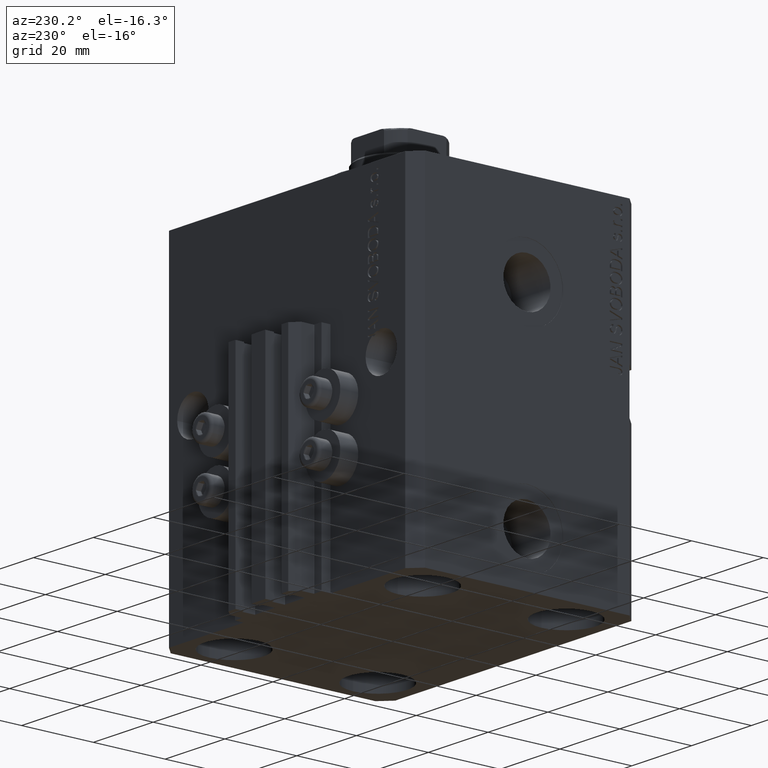
[diagram: clean part render]
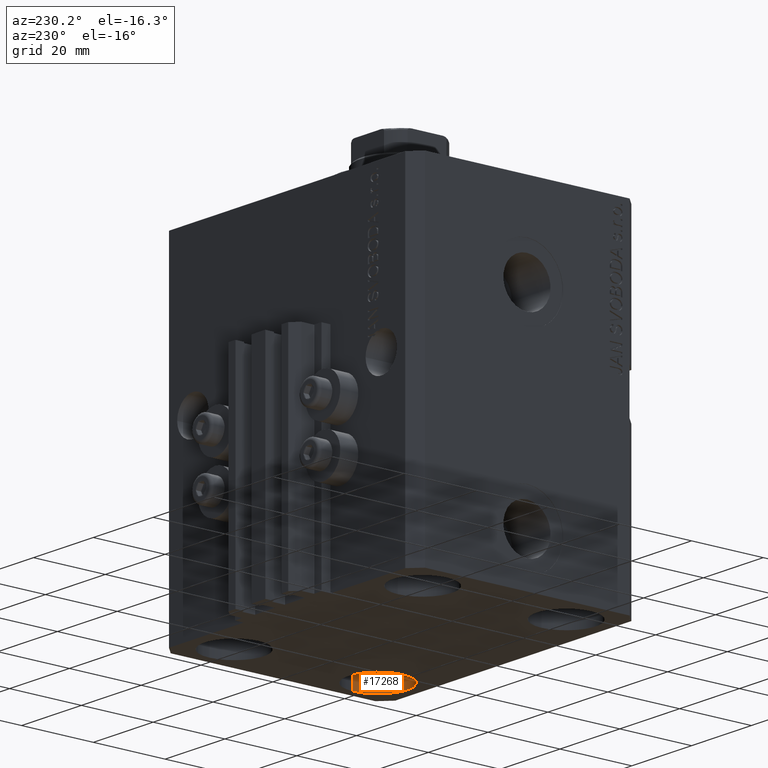
[diagram: same view with one face highlighted and labeled with its STEP entity id]
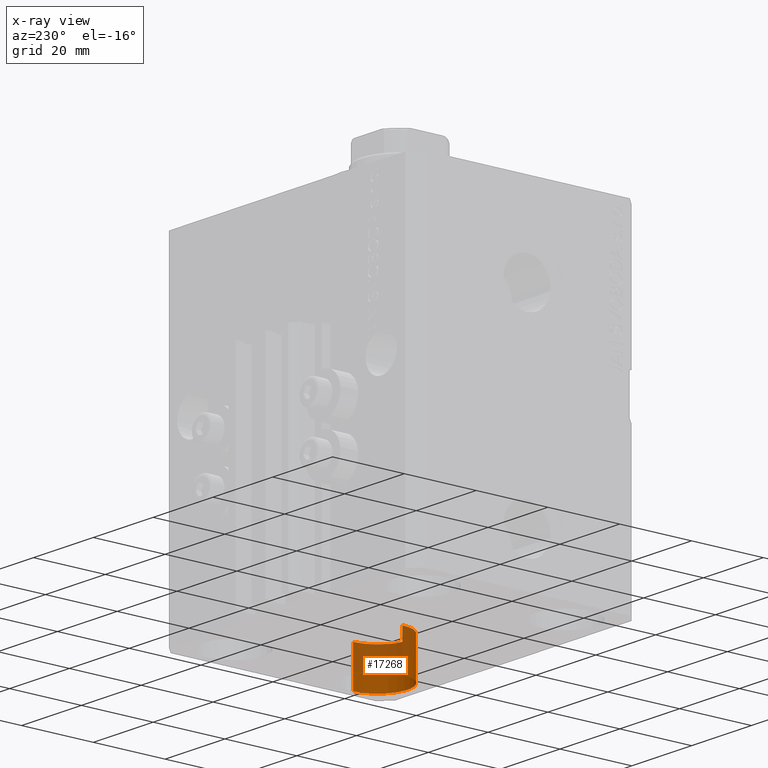
[diagram: x-ray of the same camera — body ghosted, the highlighted face saturated]
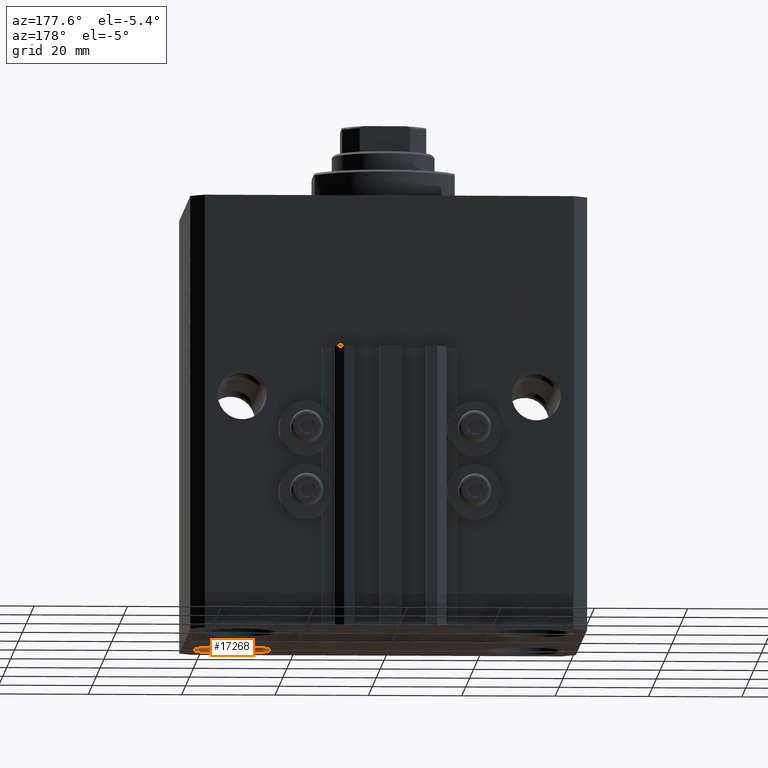
[diagram: same view with one face highlighted and labeled with its STEP entity id]
A machine part, auxiliary view. The second image highlights one B-rep face of the part: STEP entity #17268.
The next image is the same camera in x-ray: the body ghosted, the highlighted face saturated — about 56% of this face is hidden behind the body in this view.
A second angle (auxiliary view) of the same face is appended — the face is thin or edge-on in the first view.
In plain terms, the highlighted cylindrical surface (partial cylindrical patch) has radius 8.25 mm, axis along (-0, -0, -1).
Its self-contained STEP definition (entity closure, byte-faithful):
#212 = CARTESIAN_POINT ( 'NONE',  ( 31.50000000000000000, -20.00000000000000000, -82.00000000000000000 ) ) ;
#2086 = EDGE_CURVE ( 'NONE', #20805, #10501, #7801, .T. ) ;
#3336 = DIRECTION ( 'NONE',  ( 1.000000000000000000, 0.000000000000000000, 0.000000000000000000 ) ) ;
#3810 = DIRECTION ( 'NONE',  ( -0.000000000000000000, -0.000000000000000000, 1.000000000000000000 ) ) ;
#7801 = LINE ( 'NONE', #43881, #9224 ) ;
#8432 = CARTESIAN_POINT ( 'NONE',  ( 23.25000000000000355, -20.00000000000000000, -82.00000000000000000 ) ) ;
#8551 = DIRECTION ( 'NONE',  ( -0.000000000000000000, -0.000000000000000000, -1.000000000000000000 ) ) ;
#9224 = VECTOR ( 'NONE', #36884, 1000.000000000000000 ) ;
#9964 = EDGE_CURVE ( 'NONE', #10501, #30638, #29306, .T. ) ;
#10501 = VERTEX_POINT ( 'NONE', #11679 ) ;
#11125 = DIRECTION ( 'NONE',  ( -0.000000000000000000, -0.000000000000000000, -1.000000000000000000 ) ) ;
#11679 = CARTESIAN_POINT ( 'NONE',  ( 23.25000000000000355, -20.00000000000000000, -93.00000000000000000 ) ) ;
#13289 = EDGE_LOOP ( 'NONE', ( #44303, #44061, #21223, #46842 ) ) ;
#15191 = CARTESIAN_POINT ( 'NONE',  ( 31.50000000000000000, -20.00000000000000000, -82.00000000000000000 ) ) ;
#15294 = AXIS2_PLACEMENT_3D ( 'NONE', #212, #3810, #3336 ) ;
#16983 = CARTESIAN_POINT ( 'NONE',  ( 39.74999999999999289, -20.00000000000000000, -82.00000000000000000 ) ) ;
#17268 = ADVANCED_FACE ( 'NONE', ( #33678 ), #29374, .F. ) ;
#20643 = CIRCLE ( 'NONE', #15294, 8.249999999999992895 ) ;
#20757 = DIRECTION ( 'NONE',  ( -0.000000000000000000, -0.000000000000000000, 1.000000000000000000 ) ) ;
#20805 = VERTEX_POINT ( 'NONE', #8432 ) ;
#21223 = ORIENTED_EDGE ( 'NONE', *, *, #9964, .F. ) ;
#24639 = VECTOR ( 'NONE', #8551, 1000.000000000000000 ) ;
#29306 = CIRCLE ( 'NONE', #39311, 8.249999999999992895 ) ;
#29374 = CYLINDRICAL_SURFACE ( 'NONE', #46490, 8.249999999999996447 ) ;
#30587 = EDGE_CURVE ( 'NONE', #20805, #39219, #20643, .T. ) ;
#30638 = VERTEX_POINT ( 'NONE', #41806 ) ;
#32742 = DIRECTION ( 'NONE',  ( -1.000000000000000000, 0.000000000000000000, 0.000000000000000000 ) ) ;
#33678 = FACE_OUTER_BOUND ( 'NONE', #13289, .T. ) ;
#34475 = CARTESIAN_POINT ( 'NONE',  ( 31.50000000000000000, -20.00000000000000000, -93.00000000000000000 ) ) ;
#36884 = DIRECTION ( 'NONE',  ( -0.000000000000000000, -0.000000000000000000, -1.000000000000000000 ) ) ;
#39219 = VERTEX_POINT ( 'NONE', #16983 ) ;
#39311 = AXIS2_PLACEMENT_3D ( 'NONE', #34475, #20757, #42666 ) ;
#41496 = LINE ( 'NONE', #41742, #24639 ) ;
#41742 = CARTESIAN_POINT ( 'NONE',  ( 39.74999999999999289, -20.00000000000000000, -82.00000000000000000 ) ) ;
#41806 = CARTESIAN_POINT ( 'NONE',  ( 39.74999999999999289, -20.00000000000000000, -93.00000000000000000 ) ) ;
#42666 = DIRECTION ( 'NONE',  ( 1.000000000000000000, 0.000000000000000000, 0.000000000000000000 ) ) ;
#42890 = EDGE_CURVE ( 'NONE', #39219, #30638, #41496, .T. ) ;
#43881 = CARTESIAN_POINT ( 'NONE',  ( 23.25000000000000355, -20.00000000000000000, -82.00000000000000000 ) ) ;
#44061 = ORIENTED_EDGE ( 'NONE', *, *, #42890, .T. ) ;
#44303 = ORIENTED_EDGE ( 'NONE', *, *, #30587, .T. ) ;
#46490 = AXIS2_PLACEMENT_3D ( 'NONE', #15191, #11125, #32742 ) ;
#46842 = ORIENTED_EDGE ( 'NONE', *, *, #2086, .F. ) ;